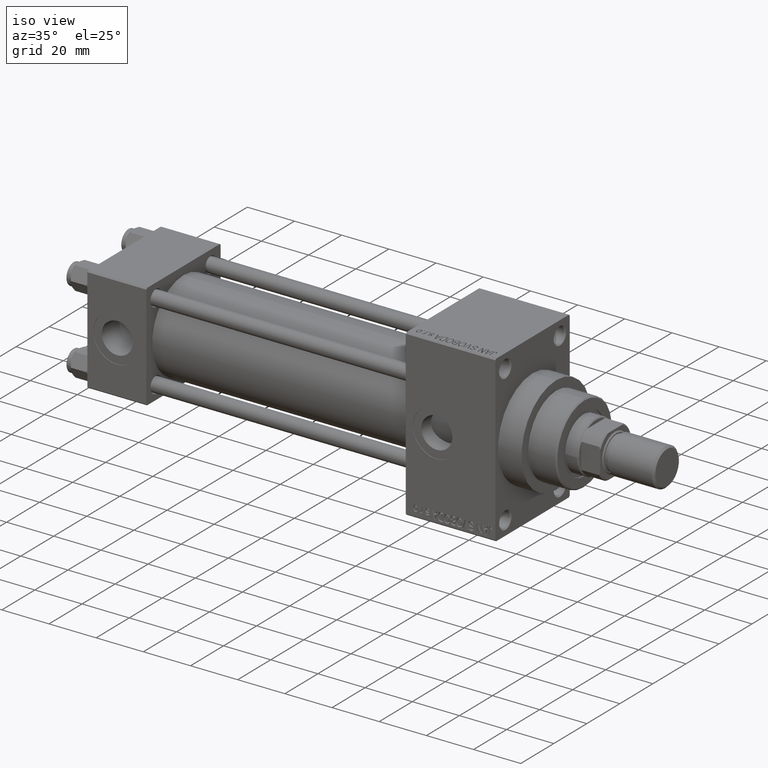
[diagram: clean part render]
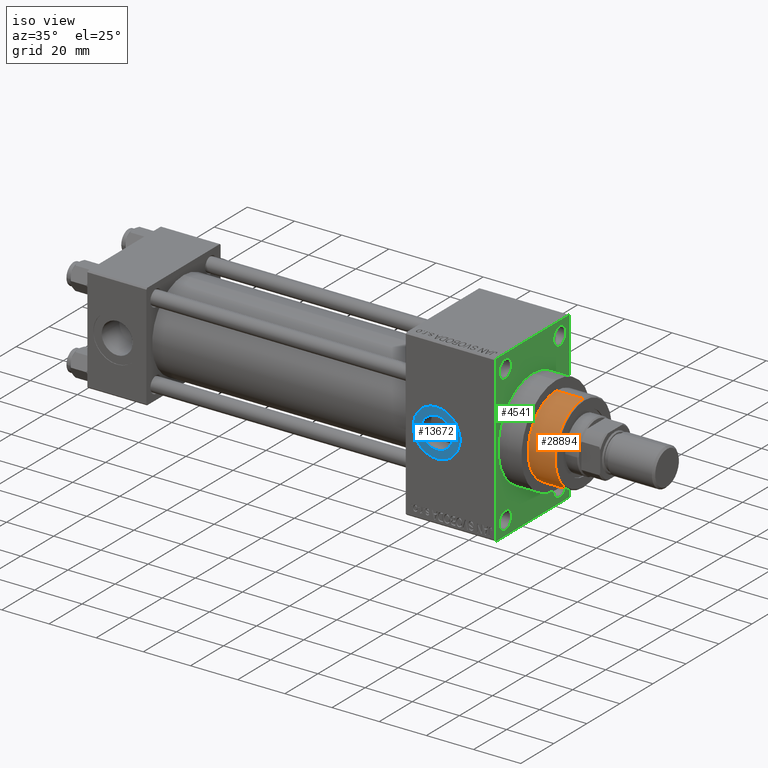
[diagram: same view with three faces highlighted in distinct colors, each labeled with its STEP entity id]
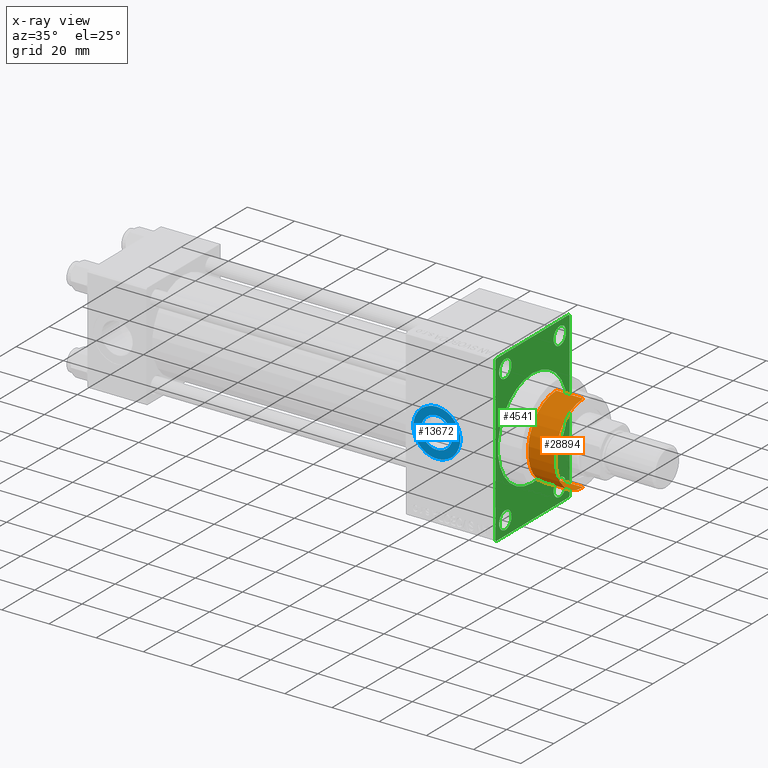
[diagram: x-ray of the same camera — body ghosted, the three highlighted faces saturated]
A machine part, iso view with three faces highlighted in distinct colors.
The next image is the same camera in x-ray (body ghosted, the three faces saturated) — at least one of them is partly hidden behind the body in this view.
Their STEP definitions:

[orange] entity #28894 — the highlighted cylindrical surface (partial cylindrical patch) has radius 17 mm, axis along (-1, 0, 0).
#671 = VERTEX_POINT ( 'NONE', #30096 ) ;
#2265 = VERTEX_POINT ( 'NONE', #33067 ) ;
#2300 = AXIS2_PLACEMENT_3D ( 'NONE', #9777, #19891, #16759 ) ;
#4548 = ORIENTED_EDGE ( 'NONE', *, *, #5212, .F. ) ;
#5212 = EDGE_CURVE ( 'NONE', #671, #7479, #20031, .T. ) ;
#5361 = CIRCLE ( 'NONE', #2300, 17.00000000000000000 ) ;
#6890 = ORIENTED_EDGE ( 'NONE', *, *, #9693, .T. ) ;
#7479 = VERTEX_POINT ( 'NONE', #20962 ) ;
#7530 = CARTESIAN_POINT ( 'NONE',  ( 0.000000000000000000, 0.000000000000000000, 54.76000000000001222 ) ) ;
#8042 = DIRECTION ( 'NONE',  ( -1.000000000000000000, 0.000000000000000000, 0.000000000000000000 ) ) ;
#8484 = EDGE_CURVE ( 'NONE', #2265, #7479, #5361, .T. ) ;
#9215 = VECTOR ( 'NONE', #11323, 1000.000000000000000 ) ;
#9693 = EDGE_CURVE ( 'NONE', #671, #24651, #17042, .T. ) ;
#9777 = CARTESIAN_POINT ( 'NONE',  ( 0.000000000000000000, 0.000000000000000000, 43.25999999999999801 ) ) ;
#11323 = DIRECTION ( 'NONE',  ( -0.000000000000000000, -0.000000000000000000, -1.000000000000000000 ) ) ;
#11682 = DIRECTION ( 'NONE',  ( -0.000000000000000000, -0.000000000000000000, -1.000000000000000000 ) ) ;
#12816 = DIRECTION ( 'NONE',  ( -0.000000000000000000, -0.000000000000000000, -1.000000000000000000 ) ) ;
#14741 = AXIS2_PLACEMENT_3D ( 'NONE', #7530, #37109, #37820 ) ;
#15286 = FACE_OUTER_BOUND ( 'NONE', #16983, .T. ) ;
#16016 = AXIS2_PLACEMENT_3D ( 'NONE', #44626, #11682, #8042 ) ;
#16417 = ORIENTED_EDGE ( 'NONE', *, *, #8484, .T. ) ;
#16759 = DIRECTION ( 'NONE',  ( 1.000000000000000000, 0.000000000000000000, 0.000000000000000000 ) ) ;
#16983 = EDGE_LOOP ( 'NONE', ( #6890, #20421, #16417, #4548 ) ) ;
#17042 = CIRCLE ( 'NONE', #14741, 17.00000000000000000 ) ;
#19112 = VECTOR ( 'NONE', #12816, 1000.000000000000000 ) ;
#19891 = DIRECTION ( 'NONE',  ( 0.000000000000000000, 0.000000000000000000, 1.000000000000000000 ) ) ;
#20031 = LINE ( 'NONE', #34681, #19112 ) ;
#20421 = ORIENTED_EDGE ( 'NONE', *, *, #32006, .T. ) ;
#20962 = CARTESIAN_POINT ( 'NONE',  ( -17.00000000000000000, 0.000000000000000000, 43.25999999999999801 ) ) ;
#22109 = CARTESIAN_POINT ( 'NONE',  ( 17.00000000000000000, 2.081899558550500280E-15, 54.76000000000001222 ) ) ;
#24651 = VERTEX_POINT ( 'NONE', #22109 ) ;
#28894 = ADVANCED_FACE ( 'NONE', ( #15286 ), #29955, .T. ) ;
#29955 = CYLINDRICAL_SURFACE ( 'NONE', #16016, 17.00000000000000000 ) ;
#30096 = CARTESIAN_POINT ( 'NONE',  ( -17.00000000000000000, 0.000000000000000000, 54.76000000000001222 ) ) ;
#32006 = EDGE_CURVE ( 'NONE', #24651, #2265, #37752, .T. ) ;
#33067 = CARTESIAN_POINT ( 'NONE',  ( 17.00000000000000000, 2.081899558550500280E-15, 43.25999999999999801 ) ) ;
#33910 = CARTESIAN_POINT ( 'NONE',  ( 17.00000000000000000, 2.081899558550500280E-15, 55.26000000000000512 ) ) ;
#34681 = CARTESIAN_POINT ( 'NONE',  ( -17.00000000000000000, 0.000000000000000000, 55.26000000000000512 ) ) ;
#37109 = DIRECTION ( 'NONE',  ( 0.000000000000000000, 0.000000000000000000, -1.000000000000000000 ) ) ;
#37752 = LINE ( 'NONE', #33910, #9215 ) ;
#37820 = DIRECTION ( 'NONE',  ( 1.000000000000000000, 0.000000000000000000, 0.000000000000000000 ) ) ;
#44626 = CARTESIAN_POINT ( 'NONE',  ( 0.000000000000000000, 0.000000000000000000, 55.26000000000000512 ) ) ;

[blue] entity #13672 — the highlighted planar face has unit normal (0, -1, -0).
#210 = DIRECTION ( 'NONE',  ( 0.000000000000000000, 0.000000000000000000, -1.000000000000000000 ) ) ;
#607 = CARTESIAN_POINT ( 'NONE',  ( 148.0000000000000284, -22.30000000000000426, 1.734723475976807403E-17 ) ) ;
#681 = VERTEX_POINT ( 'NONE', #44761 ) ;
#1847 = ORIENTED_EDGE ( 'NONE', *, *, #25667, .F. ) ;
#2126 = AXIS2_PLACEMENT_3D ( 'NONE', #607, #15318, #41040 ) ;
#2514 = EDGE_LOOP ( 'NONE', ( #45810, #39936 ) ) ;
#3588 = VERTEX_POINT ( 'NONE', #33489 ) ;
#3816 = ORIENTED_EDGE ( 'NONE', *, *, #36962, .F. ) ;
#3875 = EDGE_CURVE ( 'NONE', #3588, #681, #34538, .T. ) ;
#7710 = CARTESIAN_POINT ( 'NONE',  ( 148.0000000000000284, -22.30000000000000426, 1.734723475976807403E-17 ) ) ;
#12422 = CIRCLE ( 'NONE', #20101, 6.580000000000015170 ) ;
#13672 = ADVANCED_FACE ( 'NONE', ( #26182, #36989 ), #33609, .T. ) ;
#14138 = CARTESIAN_POINT ( 'NONE',  ( 148.0000000000000284, -22.30000000000000426, 1.734723475976808635E-17 ) ) ;
#14381 = EDGE_LOOP ( 'NONE', ( #1847, #3816 ) ) ;
#15318 = DIRECTION ( 'NONE',  ( 0.000000000000000000, -1.000000000000000000, -8.673617379884036705E-17 ) ) ;
#18280 = DIRECTION ( 'NONE',  ( 0.000000000000000000, -1.000000000000000000, -8.673617379884036705E-17 ) ) ;
#19016 = DIRECTION ( 'NONE',  ( 0.000000000000000000, 0.000000000000000000, -1.000000000000000000 ) ) ;
#19045 = CIRCLE ( 'NONE', #2126, 10.00000000000000888 ) ;
#19484 = DIRECTION ( 'NONE',  ( 0.000000000000000000, -1.000000000000000000, -8.673617379884036705E-17 ) ) ;
#19743 = VERTEX_POINT ( 'NONE', #30154 ) ;
#20101 = AXIS2_PLACEMENT_3D ( 'NONE', #22612, #18280, #210 ) ;
#21827 = DIRECTION ( 'NONE',  ( 0.000000000000000000, -1.000000000000000000, -8.673617379884036705E-17 ) ) ;
#22578 = DIRECTION ( 'NONE',  ( 0.000000000000000000, 8.673617379884036705E-17, -1.000000000000000000 ) ) ;
#22612 = CARTESIAN_POINT ( 'NONE',  ( 148.0000000000000284, -22.30000000000000426, 1.734723475976808635E-17 ) ) ;
#23817 = EDGE_CURVE ( 'NONE', #681, #3588, #19045, .T. ) ;
#25667 = EDGE_CURVE ( 'NONE', #19743, #31685, #46762, .T. ) ;
#26182 = FACE_BOUND ( 'NONE', #14381, .T. ) ;
#30154 = CARTESIAN_POINT ( 'NONE',  ( 148.0000000000000284, -22.30000000000000426, -6.580000000000015170 ) ) ;
#31685 = VERTEX_POINT ( 'NONE', #32842 ) ;
#32227 = AXIS2_PLACEMENT_3D ( 'NONE', #7710, #19484, #19016 ) ;
#32842 = CARTESIAN_POINT ( 'NONE',  ( 148.0000000000000284, -22.30000000000000426, 6.580000000000015170 ) ) ;
#33489 = CARTESIAN_POINT ( 'NONE',  ( 148.0000000000000284, -22.30000000000000426, 10.00000000000000888 ) ) ;
#33609 = PLANE ( 'NONE',  #35623 ) ;
#34538 = CIRCLE ( 'NONE', #32227, 10.00000000000000888 ) ;
#35623 = AXIS2_PLACEMENT_3D ( 'NONE', #41558, #44915, #22578 ) ;
#36962 = EDGE_CURVE ( 'NONE', #31685, #19743, #12422, .T. ) ;
#36989 = FACE_OUTER_BOUND ( 'NONE', #2514, .T. ) ;
#39160 = DIRECTION ( 'NONE',  ( 0.000000000000000000, 0.000000000000000000, -1.000000000000000000 ) ) ;
#39936 = ORIENTED_EDGE ( 'NONE', *, *, #3875, .T. ) ;
#41040 = DIRECTION ( 'NONE',  ( 0.000000000000000000, 0.000000000000000000, -1.000000000000000000 ) ) ;
#41558 = CARTESIAN_POINT ( 'NONE',  ( 148.0000000000000284, -22.30000000000000426, 1.734723475976807403E-17 ) ) ;
#44761 = CARTESIAN_POINT ( 'NONE',  ( 148.0000000000000284, -22.30000000000000426, -10.00000000000000888 ) ) ;
#44915 = DIRECTION ( 'NONE',  ( 0.000000000000000000, -1.000000000000000000, -8.673617379884036705E-17 ) ) ;
#45205 = AXIS2_PLACEMENT_3D ( 'NONE', #14138, #21827, #39160 ) ;
#45810 = ORIENTED_EDGE ( 'NONE', *, *, #23817, .T. ) ;
#46762 = CIRCLE ( 'NONE', #45205, 6.580000000000015170 ) ;

[green] entity #4541 — the highlighted planar face has unit normal (-1, 0, 0).
#409 = ORIENTED_EDGE ( 'NONE', *, *, #47151, .T. ) ;
#480 = EDGE_CURVE ( 'NONE', #27023, #23767, #36737, .T. ) ;
#728 = FACE_BOUND ( 'NONE', #13601, .T. ) ;
#1397 = DIRECTION ( 'NONE',  ( -1.000000000000000000, -0.000000000000000000, -0.000000000000000000 ) ) ;
#1678 = DIRECTION ( 'NONE',  ( 0.000000000000000000, 0.7071067811865474617, -0.7071067811865474617 ) ) ;
#1692 = CARTESIAN_POINT ( 'NONE',  ( 173.0000000000000284, 0.000000000000000000, 0.000000000000000000 ) ) ;
#1954 = CARTESIAN_POINT ( 'NONE',  ( 173.0000000000000284, 16.50000000000000000, 29.00000000000000355 ) ) ;
#2019 = LINE ( 'NONE', #2734, #34820 ) ;
#2203 = VECTOR ( 'NONE', #5481, 1000.000000000000000 ) ;
#2472 = EDGE_CURVE ( 'NONE', #33754, #20932, #19115, .T. ) ;
#2734 = CARTESIAN_POINT ( 'NONE',  ( 173.0000000000000284, 22.49999999999999645, 35.00000000000000000 ) ) ;
#2787 = EDGE_CURVE ( 'NONE', #19544, #31623, #3774, .T. ) ;
#2809 = EDGE_CURVE ( 'NONE', #28062, #21873, #30675, .T. ) ;
#3076 = DIRECTION ( 'NONE',  ( 0.000000000000000000, 0.000000000000000000, 1.000000000000000000 ) ) ;
#3239 = LINE ( 'NONE', #28984, #32143 ) ;
#3690 = EDGE_CURVE ( 'NONE', #20563, #40986, #9423, .T. ) ;
#3774 = CIRCLE ( 'NONE', #4538, 3.750000000000166533 ) ;
#3939 = EDGE_CURVE ( 'NONE', #40777, #27868, #22639, .T. ) ;
#4444 = VERTEX_POINT ( 'NONE', #6064 ) ;
#4538 = AXIS2_PLACEMENT_3D ( 'NONE', #4828, #34164, #30808 ) ;
#4541 = ADVANCED_FACE ( 'NONE', ( #18785, #728, #7946, #37054, #41146, #8654 ), #37992, .F. ) ;
#4828 = CARTESIAN_POINT ( 'NONE',  ( 173.0000000000000284, 16.50000000000000000, -28.99999999999999289 ) ) ;
#4940 = VERTEX_POINT ( 'NONE', #26137 ) ;
#5331 = VECTOR ( 'NONE', #8415, 1000.000000000000000 ) ;
#5481 = DIRECTION ( 'NONE',  ( 0.000000000000000000, 0.000000000000000000, -1.000000000000000000 ) ) ;
#5501 = CARTESIAN_POINT ( 'NONE',  ( 173.0000000000000284, -16.50000000000000000, 29.00000000000000711 ) ) ;
#5659 = ORIENTED_EDGE ( 'NONE', *, *, #2809, .T. ) ;
#5707 = EDGE_LOOP ( 'NONE', ( #13653, #44585 ) ) ;
#6022 = ORIENTED_EDGE ( 'NONE', *, *, #32460, .T. ) ;
#6064 = CARTESIAN_POINT ( 'NONE',  ( 173.0000000000000284, -16.50000000000000000, 25.24999999999984368 ) ) ;
#6877 = AXIS2_PLACEMENT_3D ( 'NONE', #12292, #45224, #41381 ) ;
#7617 = EDGE_CURVE ( 'NONE', #4444, #35938, #32225, .T. ) ;
#7629 = CIRCLE ( 'NONE', #15340, 3.750000000000166533 ) ;
#7946 = FACE_BOUND ( 'NONE', #29773, .T. ) ;
#8313 = AXIS2_PLACEMENT_3D ( 'NONE', #1954, #42866, #46714 ) ;
#8325 = ORIENTED_EDGE ( 'NONE', *, *, #2472, .F. ) ;
#8415 = DIRECTION ( 'NONE',  ( -0.000000000000000000, 0.7071067811865279218, 0.7071067811865671127 ) ) ;
#8632 = DIRECTION ( 'NONE',  ( -1.000000000000000000, -0.000000000000000000, -0.000000000000000000 ) ) ;
#8654 = FACE_OUTER_BOUND ( 'NONE', #25986, .T. ) ;
#8830 = CARTESIAN_POINT ( 'NONE',  ( 173.0000000000000284, 16.50000000000000000, -32.75000000000017053 ) ) ;
#9423 = LINE ( 'NONE', #12799, #42220 ) ;
#9696 = AXIS2_PLACEMENT_3D ( 'NONE', #1692, #16392, #31056 ) ;
#10350 = EDGE_CURVE ( 'NONE', #36175, #4940, #2019, .T. ) ;
#10470 = ORIENTED_EDGE ( 'NONE', *, *, #28367, .T. ) ;
#11469 = VERTEX_POINT ( 'NONE', #15295 ) ;
#12292 = CARTESIAN_POINT ( 'NONE',  ( 173.0000000000000284, 0.000000000000000000, 0.000000000000000000 ) ) ;
#12706 = CARTESIAN_POINT ( 'NONE',  ( 173.0000000000000284, 22.49999999999999645, 35.00000000000000000 ) ) ;
#12799 = CARTESIAN_POINT ( 'NONE',  ( 173.0000000000000284, -22.50000000000000355, 35.00000000000000000 ) ) ;
#13042 = AXIS2_PLACEMENT_3D ( 'NONE', #5501, #1397, #19942 ) ;
#13363 = DIRECTION ( 'NONE',  ( 0.000000000000000000, -1.000000000000000000, 0.000000000000000000 ) ) ;
#13460 = CARTESIAN_POINT ( 'NONE',  ( 173.0000000000000284, -22.50000000000000355, -34.50000000000000000 ) ) ;
#13567 = CARTESIAN_POINT ( 'NONE',  ( 173.0000000000000284, 2.571758278209441661E-15, -21.00000000000000000 ) ) ;
#13601 = EDGE_LOOP ( 'NONE', ( #5659, #10470 ) ) ;
#13653 = ORIENTED_EDGE ( 'NONE', *, *, #7617, .T. ) ;
#14603 = CARTESIAN_POINT ( 'NONE',  ( 173.0000000000000284, 21.99999999999999645, 35.00000000000000000 ) ) ;
#15046 = CARTESIAN_POINT ( 'NONE',  ( 173.0000000000000284, 16.50000000000000000, -25.24999999999982592 ) ) ;
#15295 = CARTESIAN_POINT ( 'NONE',  ( 173.0000000000000284, 22.49999999999999645, 34.50000000000000000 ) ) ;
#15340 = AXIS2_PLACEMENT_3D ( 'NONE', #34300, #16513, #45614 ) ;
#16041 = DIRECTION ( 'NONE',  ( -0.000000000000000000, -0.7071067811865279218, -0.7071067811865671127 ) ) ;
#16392 = DIRECTION ( 'NONE',  ( 1.000000000000000000, 0.000000000000000000, 0.000000000000000000 ) ) ;
#16513 = DIRECTION ( 'NONE',  ( -1.000000000000000000, -0.000000000000000000, -0.000000000000000000 ) ) ;
#16588 = EDGE_CURVE ( 'NONE', #40986, #34576, #20468, .T. ) ;
#17225 = CARTESIAN_POINT ( 'NONE',  ( 173.0000000000000284, 22.49999999999999645, -34.50000000000000000 ) ) ;
#17925 = DIRECTION ( 'NONE',  ( 0.000000000000000000, -1.000000000000000000, 0.000000000000000000 ) ) ;
#18515 = ORIENTED_EDGE ( 'NONE', *, *, #480, .T. ) ;
#18785 = FACE_BOUND ( 'NONE', #5707, .T. ) ;
#19115 = CIRCLE ( 'NONE', #25260, 21.00000000000000000 ) ;
#19544 = VERTEX_POINT ( 'NONE', #8830 ) ;
#19678 = CARTESIAN_POINT ( 'NONE',  ( 173.0000000000000284, -22.50000000000000355, 34.50000000000000000 ) ) ;
#19942 = DIRECTION ( 'NONE',  ( 0.000000000000000000, 0.000000000000000000, 1.000000000000000000 ) ) ;
#19979 = ORIENTED_EDGE ( 'NONE', *, *, #3939, .T. ) ;
#20167 = ORIENTED_EDGE ( 'NONE', *, *, #10350, .T. ) ;
#20468 = LINE ( 'NONE', #35114, #37197 ) ;
#20563 = VERTEX_POINT ( 'NONE', #19678 ) ;
#20932 = VERTEX_POINT ( 'NONE', #45589 ) ;
#21495 = EDGE_CURVE ( 'NONE', #11469, #36175, #32851, .T. ) ;
#21631 = CARTESIAN_POINT ( 'NONE',  ( 173.0000000000000284, -21.99999999999998934, -35.00000000000000000 ) ) ;
#21873 = VERTEX_POINT ( 'NONE', #44459 ) ;
#22135 = CIRCLE ( 'NONE', #39052, 3.750000000000169642 ) ;
#22639 = LINE ( 'NONE', #41618, #5331 ) ;
#22849 = DIRECTION ( 'NONE',  ( 0.000000000000000000, 0.000000000000000000, 1.000000000000000000 ) ) ;
#23031 = CIRCLE ( 'NONE', #41468, 3.750000000000166533 ) ;
#23276 = DIRECTION ( 'NONE',  ( 0.000000000000000000, 0.000000000000000000, 1.000000000000000000 ) ) ;
#23654 = CARTESIAN_POINT ( 'NONE',  ( 173.0000000000000284, 0.000000000000000000, 0.000000000000000000 ) ) ;
#23767 = VERTEX_POINT ( 'NONE', #37185 ) ;
#25260 = AXIS2_PLACEMENT_3D ( 'NONE', #23654, #38319, #31095 ) ;
#25613 = EDGE_CURVE ( 'NONE', #11469, #27868, #46142, .T. ) ;
#25986 = EDGE_LOOP ( 'NONE', ( #40447, #33494, #41052, #19979, #41164, #39374, #20167, #409 ) ) ;
#26137 = CARTESIAN_POINT ( 'NONE',  ( 173.0000000000000284, -22.00000000000001776, 35.00000000000000000 ) ) ;
#27023 = VERTEX_POINT ( 'NONE', #36573 ) ;
#27461 = DIRECTION ( 'NONE',  ( 0.000000000000000000, 0.000000000000000000, -1.000000000000000000 ) ) ;
#27683 = DIRECTION ( 'NONE',  ( -1.000000000000000000, -0.000000000000000000, -0.000000000000000000 ) ) ;
#27868 = VERTEX_POINT ( 'NONE', #17225 ) ;
#28062 = VERTEX_POINT ( 'NONE', #28641 ) ;
#28335 = CARTESIAN_POINT ( 'NONE',  ( 173.0000000000000284, 21.99999999999999645, 35.00000000000000000 ) ) ;
#28367 = EDGE_CURVE ( 'NONE', #21873, #28062, #36706, .T. ) ;
#28641 = CARTESIAN_POINT ( 'NONE',  ( 173.0000000000000284, -16.50000000000000000, -32.75000000000017053 ) ) ;
#28984 = CARTESIAN_POINT ( 'NONE',  ( 173.0000000000000284, 22.49999999999999645, -35.00000000000000000 ) ) ;
#29773 = EDGE_LOOP ( 'NONE', ( #43071, #6022 ) ) ;
#30332 = DIRECTION ( 'NONE',  ( 0.000000000000000000, 0.000000000000000000, 1.000000000000000000 ) ) ;
#30675 = CIRCLE ( 'NONE', #46795, 3.750000000000166533 ) ;
#30808 = DIRECTION ( 'NONE',  ( 0.000000000000000000, 0.000000000000000000, 1.000000000000000000 ) ) ;
#31056 = DIRECTION ( 'NONE',  ( 0.000000000000000000, 0.000000000000000000, -1.000000000000000000 ) ) ;
#31095 = DIRECTION ( 'NONE',  ( 0.000000000000000000, 0.000000000000000000, -1.000000000000000000 ) ) ;
#31272 = CARTESIAN_POINT ( 'NONE',  ( 173.0000000000000284, -16.50000000000000000, -28.99999999999999289 ) ) ;
#31424 = CARTESIAN_POINT ( 'NONE',  ( 173.0000000000000284, -22.50000000000000355, 34.50000000000000000 ) ) ;
#31466 = EDGE_CURVE ( 'NONE', #35938, #4444, #7629, .T. ) ;
#31623 = VERTEX_POINT ( 'NONE', #15046 ) ;
#31975 = CIRCLE ( 'NONE', #9696, 21.00000000000000000 ) ;
#32143 = VECTOR ( 'NONE', #17925, 1000.000000000000000 ) ;
#32225 = CIRCLE ( 'NONE', #13042, 3.750000000000166533 ) ;
#32460 = EDGE_CURVE ( 'NONE', #31623, #19544, #23031, .T. ) ;
#32851 = LINE ( 'NONE', #14603, #34298 ) ;
#32895 = CARTESIAN_POINT ( 'NONE',  ( 173.0000000000000284, -16.50000000000000000, -28.99999999999999289 ) ) ;
#33274 = ORIENTED_EDGE ( 'NONE', *, *, #43578, .T. ) ;
#33494 = ORIENTED_EDGE ( 'NONE', *, *, #16588, .T. ) ;
#33754 = VERTEX_POINT ( 'NONE', #13567 ) ;
#34074 = DIRECTION ( 'NONE',  ( -1.000000000000000000, -0.000000000000000000, -0.000000000000000000 ) ) ;
#34164 = DIRECTION ( 'NONE',  ( -1.000000000000000000, -0.000000000000000000, -0.000000000000000000 ) ) ;
#34298 = VECTOR ( 'NONE', #35621, 1000.000000000000114 ) ;
#34300 = CARTESIAN_POINT ( 'NONE',  ( 173.0000000000000284, -16.50000000000000000, 29.00000000000000711 ) ) ;
#34576 = VERTEX_POINT ( 'NONE', #21631 ) ;
#34820 = VECTOR ( 'NONE', #13363, 1000.000000000000000 ) ;
#35114 = CARTESIAN_POINT ( 'NONE',  ( 173.0000000000000284, -22.00000000000000355, -35.00000000000000000 ) ) ;
#35621 = DIRECTION ( 'NONE',  ( 0.000000000000000000, -0.7071067811865474617, 0.7071067811865474617 ) ) ;
#35938 = VERTEX_POINT ( 'NONE', #42171 ) ;
#36175 = VERTEX_POINT ( 'NONE', #28335 ) ;
#36573 = CARTESIAN_POINT ( 'NONE',  ( 173.0000000000000284, 16.50000000000000000, 25.24999999999983658 ) ) ;
#36706 = CIRCLE ( 'NONE', #42871, 3.750000000000166533 ) ;
#36737 = CIRCLE ( 'NONE', #8313, 3.750000000000169642 ) ;
#37054 = FACE_BOUND ( 'NONE', #42348, .T. ) ;
#37185 = CARTESIAN_POINT ( 'NONE',  ( 173.0000000000000284, 16.50000000000000000, 32.75000000000017764 ) ) ;
#37197 = VECTOR ( 'NONE', #1678, 1000.000000000000114 ) ;
#37992 = PLANE ( 'NONE',  #6877 ) ;
#38319 = DIRECTION ( 'NONE',  ( 1.000000000000000000, 0.000000000000000000, 0.000000000000000000 ) ) ;
#39052 = AXIS2_PLACEMENT_3D ( 'NONE', #44506, #8632, #22849 ) ;
#39374 = ORIENTED_EDGE ( 'NONE', *, *, #21495, .T. ) ;
#39669 = EDGE_CURVE ( 'NONE', #20932, #33754, #31975, .T. ) ;
#39808 = VECTOR ( 'NONE', #16041, 1000.000000000000000 ) ;
#40447 = ORIENTED_EDGE ( 'NONE', *, *, #3690, .T. ) ;
#40777 = VERTEX_POINT ( 'NONE', #46945 ) ;
#40986 = VERTEX_POINT ( 'NONE', #13460 ) ;
#41052 = ORIENTED_EDGE ( 'NONE', *, *, #45133, .F. ) ;
#41146 = FACE_BOUND ( 'NONE', #44058, .T. ) ;
#41164 = ORIENTED_EDGE ( 'NONE', *, *, #25613, .F. ) ;
#41381 = DIRECTION ( 'NONE',  ( -0.000000000000000000, 0.000000000000000000, 1.000000000000000000 ) ) ;
#41468 = AXIS2_PLACEMENT_3D ( 'NONE', #42267, #34074, #23276 ) ;
#41618 = CARTESIAN_POINT ( 'NONE',  ( 173.0000000000000284, 22.49999999999999645, -34.50000000000000000 ) ) ;
#42171 = CARTESIAN_POINT ( 'NONE',  ( 173.0000000000000284, -16.50000000000000000, 32.75000000000017764 ) ) ;
#42220 = VECTOR ( 'NONE', #27461, 1000.000000000000000 ) ;
#42267 = CARTESIAN_POINT ( 'NONE',  ( 173.0000000000000284, 16.50000000000000000, -28.99999999999999289 ) ) ;
#42348 = EDGE_LOOP ( 'NONE', ( #18515, #33274 ) ) ;
#42866 = DIRECTION ( 'NONE',  ( -1.000000000000000000, -0.000000000000000000, -0.000000000000000000 ) ) ;
#42871 = AXIS2_PLACEMENT_3D ( 'NONE', #32895, #43735, #3076 ) ;
#43071 = ORIENTED_EDGE ( 'NONE', *, *, #2787, .T. ) ;
#43578 = EDGE_CURVE ( 'NONE', #23767, #27023, #22135, .T. ) ;
#43735 = DIRECTION ( 'NONE',  ( -1.000000000000000000, -0.000000000000000000, -0.000000000000000000 ) ) ;
#44058 = EDGE_LOOP ( 'NONE', ( #46137, #8325 ) ) ;
#44459 = CARTESIAN_POINT ( 'NONE',  ( 173.0000000000000284, -16.50000000000000000, -25.24999999999982592 ) ) ;
#44506 = CARTESIAN_POINT ( 'NONE',  ( 173.0000000000000284, 16.50000000000000000, 29.00000000000000355 ) ) ;
#44585 = ORIENTED_EDGE ( 'NONE', *, *, #31466, .T. ) ;
#45133 = EDGE_CURVE ( 'NONE', #40777, #34576, #3239, .T. ) ;
#45224 = DIRECTION ( 'NONE',  ( -1.000000000000000000, 0.000000000000000000, -0.000000000000000000 ) ) ;
#45589 = CARTESIAN_POINT ( 'NONE',  ( 173.0000000000000284, 0.000000000000000000, 21.00000000000000000 ) ) ;
#45613 = LINE ( 'NONE', #31424, #39808 ) ;
#45614 = DIRECTION ( 'NONE',  ( 0.000000000000000000, 0.000000000000000000, 1.000000000000000000 ) ) ;
#46137 = ORIENTED_EDGE ( 'NONE', *, *, #39669, .F. ) ;
#46142 = LINE ( 'NONE', #12706, #2203 ) ;
#46714 = DIRECTION ( 'NONE',  ( 0.000000000000000000, 0.000000000000000000, 1.000000000000000000 ) ) ;
#46795 = AXIS2_PLACEMENT_3D ( 'NONE', #31272, #27683, #30332 ) ;
#46945 = CARTESIAN_POINT ( 'NONE',  ( 173.0000000000000284, 22.00000000000002132, -35.00000000000000000 ) ) ;
#47151 = EDGE_CURVE ( 'NONE', #4940, #20563, #45613, .T. ) ;